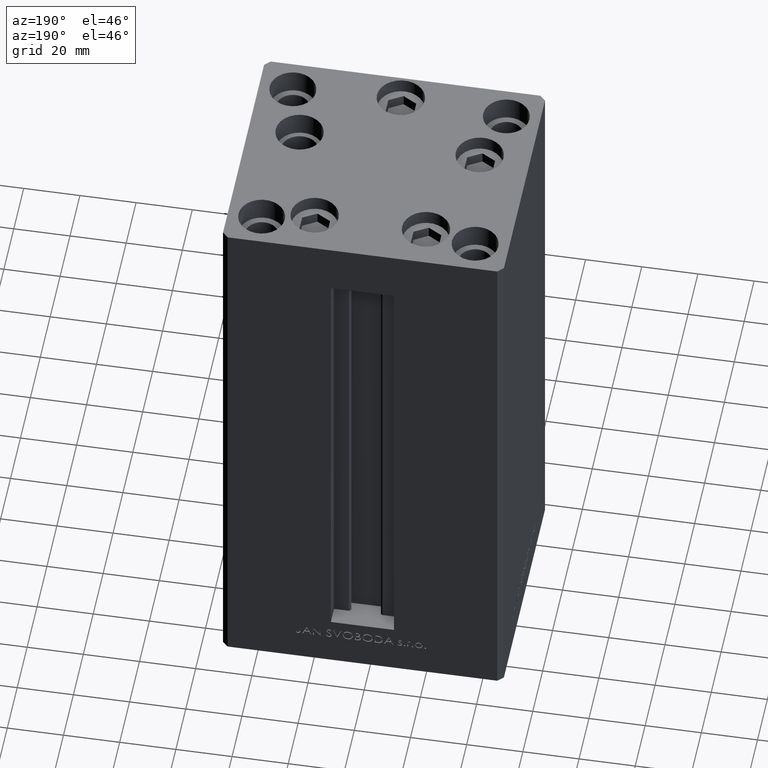
[diagram: clean part render]
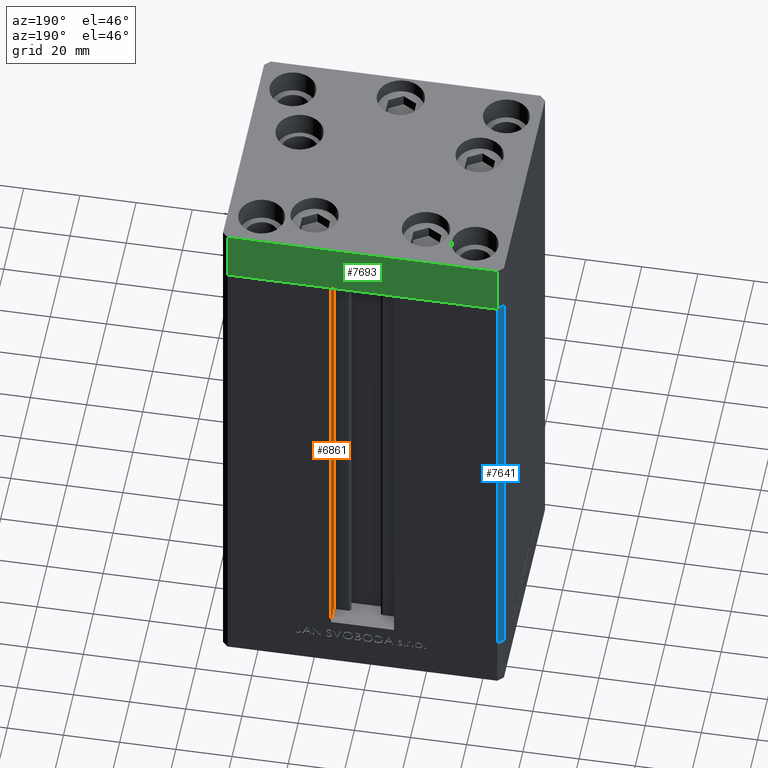
[diagram: same view with three faces highlighted in distinct colors, each labeled with its STEP entity id]
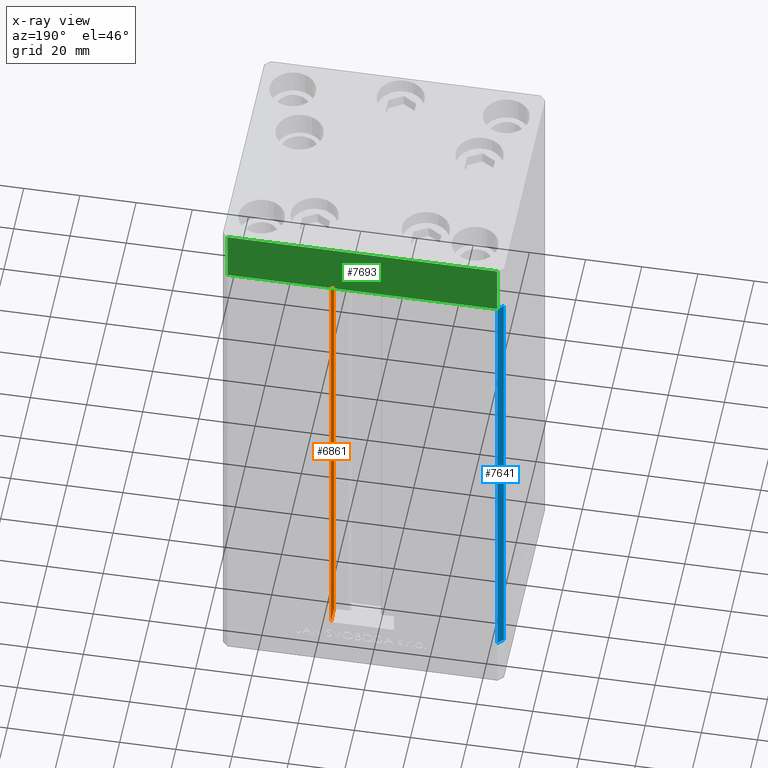
[diagram: x-ray of the same camera — body ghosted, the three highlighted faces saturated]
A machine part, auxiliary view with three faces highlighted in distinct colors.
The next image is the same camera in x-ray (body ghosted, the three faces saturated) — at least one of them is partly hidden behind the body in this view.
Their STEP definitions:

[orange] entity #6861 — the highlighted planar face has unit normal (1, 0, 0).
#2624 = CARTESIAN_POINT ( 'NONE',  ( 11.24999999999999822, 36.99999999999999289, 0.000000000000000000 ) ) ;
#5516 = ORIENTED_EDGE ( 'NONE', *, *, #28069, .T. ) ;
#6537 = CARTESIAN_POINT ( 'NONE',  ( 11.24999999999999822, 43.50000000000000000, 0.000000000000000000 ) ) ;
#6608 = VERTEX_POINT ( 'NONE', #42554 ) ;
#6861 = ADVANCED_FACE ( 'NONE', ( #24280 ), #39441, .F. ) ;
#7379 = ORIENTED_EDGE ( 'NONE', *, *, #33449, .F. ) ;
#8355 = ORIENTED_EDGE ( 'NONE', *, *, #25685, .F. ) ;
#9713 = VECTOR ( 'NONE', #27863, 1000.000000000000000 ) ;
#11258 = CARTESIAN_POINT ( 'NONE',  ( 11.24999999999999822, 0.000000000000000000, 168.5000000000000000 ) ) ;
#11367 = EDGE_LOOP ( 'NONE', ( #7379, #8355, #5516, #39764 ) ) ;
#12140 = EDGE_CURVE ( 'NONE', #37386, #6608, #22221, .T. ) ;
#12576 = DIRECTION ( 'NONE',  ( 0.000000000000000000, 0.000000000000000000, -1.000000000000000000 ) ) ;
#13788 = VERTEX_POINT ( 'NONE', #20740 ) ;
#15694 = VECTOR ( 'NONE', #26202, 1000.000000000000000 ) ;
#17804 = DIRECTION ( 'NONE',  ( 0.000000000000000000, 1.000000000000000000, 0.000000000000000000 ) ) ;
#20042 = CARTESIAN_POINT ( 'NONE',  ( 11.24999999999999822, 43.50000000000000000, 0.000000000000000000 ) ) ;
#20740 = CARTESIAN_POINT ( 'NONE',  ( 11.24999999999999822, 36.99999999999999289, 0.000000000000000000 ) ) ;
#22221 = LINE ( 'NONE', #11258, #15694 ) ;
#22247 = CARTESIAN_POINT ( 'NONE',  ( 11.24999999999999112, 43.50000000000000000, 168.5000000000000000 ) ) ;
#24280 = FACE_OUTER_BOUND ( 'NONE', #11367, .T. ) ;
#25685 = EDGE_CURVE ( 'NONE', #13788, #47165, #36716, .T. ) ;
#26202 = DIRECTION ( 'NONE',  ( -0.000000000000000000, -1.000000000000000000, 0.000000000000000000 ) ) ;
#27863 = DIRECTION ( 'NONE',  ( -0.000000000000000000, -0.000000000000000000, 1.000000000000000000 ) ) ;
#28069 = EDGE_CURVE ( 'NONE', #13788, #6608, #35318, .T. ) ;
#31601 = CARTESIAN_POINT ( 'NONE',  ( 11.24999999999999822, 36.99999999999999289, 0.000000000000000000 ) ) ;
#32237 = CARTESIAN_POINT ( 'NONE',  ( 11.24999999999999822, 36.99999999999999289, 0.000000000000000000 ) ) ;
#33449 = EDGE_CURVE ( 'NONE', #47165, #37386, #48083, .T. ) ;
#35318 = LINE ( 'NONE', #31601, #9713 ) ;
#36615 = VECTOR ( 'NONE', #17804, 1000.000000000000000 ) ;
#36655 = DIRECTION ( 'NONE',  ( -0.000000000000000000, -0.000000000000000000, 1.000000000000000000 ) ) ;
#36716 = LINE ( 'NONE', #2624, #36615 ) ;
#36982 = AXIS2_PLACEMENT_3D ( 'NONE', #32237, #46665, #12576 ) ;
#37386 = VERTEX_POINT ( 'NONE', #22247 ) ;
#39441 = PLANE ( 'NONE',  #36982 ) ;
#39764 = ORIENTED_EDGE ( 'NONE', *, *, #12140, .F. ) ;
#42554 = CARTESIAN_POINT ( 'NONE',  ( 11.24999999999999822, 36.99999999999999289, 168.5000000000000000 ) ) ;
#46665 = DIRECTION ( 'NONE',  ( 1.000000000000000000, -0.000000000000000000, 0.000000000000000000 ) ) ;
#47165 = VERTEX_POINT ( 'NONE', #20042 ) ;
#48083 = LINE ( 'NONE', #6537, #48197 ) ;
#48197 = VECTOR ( 'NONE', #36655, 1000.000000000000000 ) ;

[blue] entity #7641 — the highlighted planar face has unit normal (0.7071, -0.7071, 0).
#1034 = ORIENTED_EDGE ( 'NONE', *, *, #13608, .F. ) ;
#5180 = LINE ( 'NONE', #24352, #41722 ) ;
#6662 = DIRECTION ( 'NONE',  ( 0.7071067811865487940, 0.7071067811865463515, 0.000000000000000000 ) ) ;
#7442 = VECTOR ( 'NONE', #16883, 1000.000000000000000 ) ;
#7582 = EDGE_CURVE ( 'NONE', #36002, #24306, #5180, .T. ) ;
#7641 = ADVANCED_FACE ( 'NONE', ( #33782 ), #18370, .F. ) ;
#8111 = CARTESIAN_POINT ( 'NONE',  ( -50.00000000000001421, 41.49999999999999289, 0.000000000000000000 ) ) ;
#8626 = VERTEX_POINT ( 'NONE', #19584 ) ;
#11031 = VECTOR ( 'NONE', #43520, 1000.000000000000000 ) ;
#12947 = ORIENTED_EDGE ( 'NONE', *, *, #7582, .T. ) ;
#13608 = EDGE_CURVE ( 'NONE', #31631, #24306, #20306, .T. ) ;
#14867 = CARTESIAN_POINT ( 'NONE',  ( -48.00000000000000711, 43.50000000000000000, 168.5000000000000000 ) ) ;
#15510 = AXIS2_PLACEMENT_3D ( 'NONE', #14867, #37749, #6662 ) ;
#15536 = EDGE_LOOP ( 'NONE', ( #12947, #1034, #37283, #17638 ) ) ;
#15688 = EDGE_CURVE ( 'NONE', #8626, #36002, #32094, .T. ) ;
#16883 = DIRECTION ( 'NONE',  ( -0.7071067811865487940, -0.7071067811865463515, 0.000000000000000000 ) ) ;
#17638 = ORIENTED_EDGE ( 'NONE', *, *, #15688, .T. ) ;
#18121 = VECTOR ( 'NONE', #20063, 1000.000000000000000 ) ;
#18370 = PLANE ( 'NONE',  #15510 ) ;
#19584 = CARTESIAN_POINT ( 'NONE',  ( -48.00000000000000711, 43.50000000000000000, 168.5000000000000000 ) ) ;
#20063 = DIRECTION ( 'NONE',  ( -0.000000000000000000, -0.000000000000000000, -1.000000000000000000 ) ) ;
#20306 = LINE ( 'NONE', #31771, #18121 ) ;
#20687 = CARTESIAN_POINT ( 'NONE',  ( -48.00000000000000711, 43.50000000000000000, 0.000000000000000000 ) ) ;
#21366 = DIRECTION ( 'NONE',  ( -0.7071067811865487940, -0.7071067811865463515, 0.000000000000000000 ) ) ;
#24306 = VERTEX_POINT ( 'NONE', #8111 ) ;
#24352 = CARTESIAN_POINT ( 'NONE',  ( -48.00000000000000711, 43.50000000000000000, 0.000000000000000000 ) ) ;
#29735 = EDGE_CURVE ( 'NONE', #8626, #31631, #42759, .T. ) ;
#31631 = VERTEX_POINT ( 'NONE', #36298 ) ;
#31771 = CARTESIAN_POINT ( 'NONE',  ( -50.00000000000001421, 41.49999999999999289, 168.5000000000000000 ) ) ;
#32094 = LINE ( 'NONE', #47250, #11031 ) ;
#33782 = FACE_OUTER_BOUND ( 'NONE', #15536, .T. ) ;
#36002 = VERTEX_POINT ( 'NONE', #20687 ) ;
#36298 = CARTESIAN_POINT ( 'NONE',  ( -50.00000000000001421, 41.49999999999999289, 168.5000000000000000 ) ) ;
#37283 = ORIENTED_EDGE ( 'NONE', *, *, #29735, .F. ) ;
#37749 = DIRECTION ( 'NONE',  ( 0.7071067811865463515, -0.7071067811865487940, 0.000000000000000000 ) ) ;
#41722 = VECTOR ( 'NONE', #21366, 1000.000000000000000 ) ;
#42759 = LINE ( 'NONE', #46735, #7442 ) ;
#43520 = DIRECTION ( 'NONE',  ( -0.000000000000000000, -0.000000000000000000, -1.000000000000000000 ) ) ;
#46735 = CARTESIAN_POINT ( 'NONE',  ( -48.00000000000000711, 43.50000000000000000, 168.5000000000000000 ) ) ;
#47250 = CARTESIAN_POINT ( 'NONE',  ( -48.00000000000000711, 43.50000000000000000, 168.5000000000000000 ) ) ;

[green] entity #7693 — the highlighted planar face has unit normal (-0, 1, 0).
#44 = DIRECTION ( 'NONE',  ( 0.000000000000000000, 0.000000000000000000, 1.000000000000000000 ) ) ;
#436 = DIRECTION ( 'NONE',  ( -1.000000000000000000, -3.614007241618350743E-16, 0.000000000000000000 ) ) ;
#6826 = EDGE_LOOP ( 'NONE', ( #47439, #7567, #20872, #30738 ) ) ;
#7567 = ORIENTED_EDGE ( 'NONE', *, *, #43534, .F. ) ;
#7693 = ADVANCED_FACE ( 'NONE', ( #41725 ), #12117, .T. ) ;
#8572 = VERTEX_POINT ( 'NONE', #25854 ) ;
#8605 = VERTEX_POINT ( 'NONE', #38989 ) ;
#8767 = CARTESIAN_POINT ( 'NONE',  ( -48.00000000000000711, 43.49999999999996447, -19.00000000000000000 ) ) ;
#9331 = EDGE_CURVE ( 'NONE', #8605, #10124, #18388, .T. ) ;
#10124 = VERTEX_POINT ( 'NONE', #28414 ) ;
#12117 = PLANE ( 'NONE',  #34596 ) ;
#12257 = DIRECTION ( 'NONE',  ( 0.000000000000000000, 0.000000000000000000, 1.000000000000000000 ) ) ;
#12596 = VECTOR ( 'NONE', #12257, 1000.000000000000000 ) ;
#15116 = DIRECTION ( 'NONE',  ( -3.614007241618350743E-16, 1.000000000000000000, 0.000000000000000000 ) ) ;
#16404 = EDGE_CURVE ( 'NONE', #10124, #20605, #27444, .T. ) ;
#16909 = EDGE_CURVE ( 'NONE', #8572, #20605, #31020, .T. ) ;
#18388 = LINE ( 'NONE', #18620, #37054 ) ;
#18464 = LINE ( 'NONE', #48315, #48363 ) ;
#18620 = CARTESIAN_POINT ( 'NONE',  ( 47.99999999999990763, 43.50000000000000000, -19.00000000000000000 ) ) ;
#20605 = VERTEX_POINT ( 'NONE', #42328 ) ;
#20872 = ORIENTED_EDGE ( 'NONE', *, *, #9331, .T. ) ;
#22796 = DIRECTION ( 'NONE',  ( -1.000000000000000000, -3.614007241618350743E-16, 0.000000000000000000 ) ) ;
#22829 = CARTESIAN_POINT ( 'NONE',  ( 47.99999999999990763, 43.50000000000000000, -19.00000000000000000 ) ) ;
#25854 = CARTESIAN_POINT ( 'NONE',  ( 47.99999999999990763, 43.50000000000000000, 0.000000000000000000 ) ) ;
#27444 = LINE ( 'NONE', #8767, #12596 ) ;
#28414 = CARTESIAN_POINT ( 'NONE',  ( -48.00000000000000711, 43.49999999999996447, -19.00000000000000000 ) ) ;
#30738 = ORIENTED_EDGE ( 'NONE', *, *, #16404, .T. ) ;
#31020 = LINE ( 'NONE', #45931, #46799 ) ;
#33798 = DIRECTION ( 'NONE',  ( -1.000000000000000000, -3.614007241618350743E-16, 0.000000000000000000 ) ) ;
#34596 = AXIS2_PLACEMENT_3D ( 'NONE', #22829, #15116, #436 ) ;
#37054 = VECTOR ( 'NONE', #33798, 1000.000000000000000 ) ;
#38989 = CARTESIAN_POINT ( 'NONE',  ( 47.99999999999990763, 43.50000000000000000, -19.00000000000000000 ) ) ;
#41725 = FACE_OUTER_BOUND ( 'NONE', #6826, .T. ) ;
#42328 = CARTESIAN_POINT ( 'NONE',  ( -48.00000000000000711, 43.49999999999996447, 0.000000000000000000 ) ) ;
#43534 = EDGE_CURVE ( 'NONE', #8605, #8572, #18464, .T. ) ;
#45931 = CARTESIAN_POINT ( 'NONE',  ( 47.99999999999990763, 43.50000000000000000, 0.000000000000000000 ) ) ;
#46799 = VECTOR ( 'NONE', #22796, 1000.000000000000000 ) ;
#47439 = ORIENTED_EDGE ( 'NONE', *, *, #16909, .F. ) ;
#48315 = CARTESIAN_POINT ( 'NONE',  ( 47.99999999999990763, 43.50000000000000000, -19.00000000000000000 ) ) ;
#48363 = VECTOR ( 'NONE', #44, 1000.000000000000000 ) ;